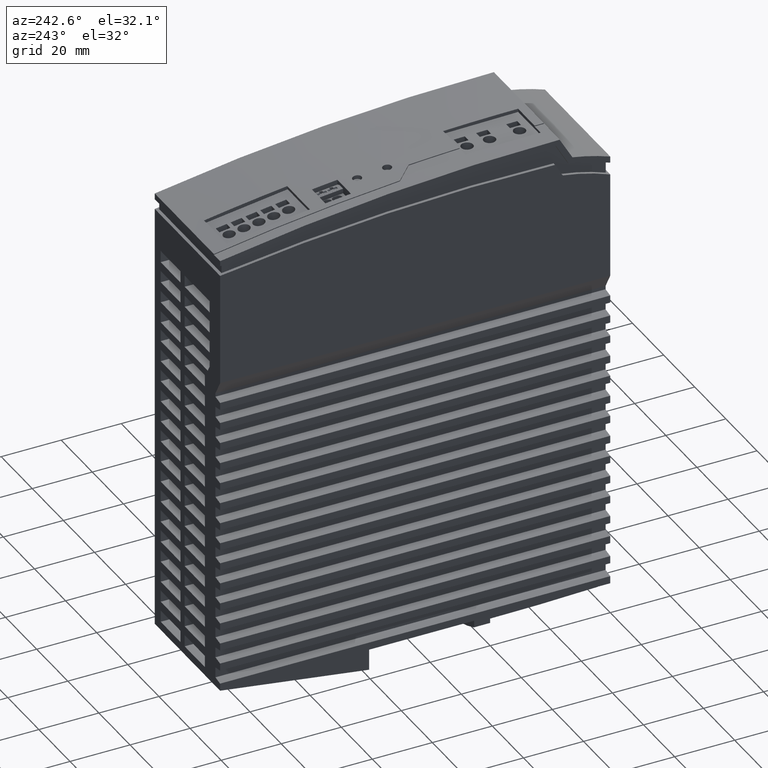
[diagram: clean part render]
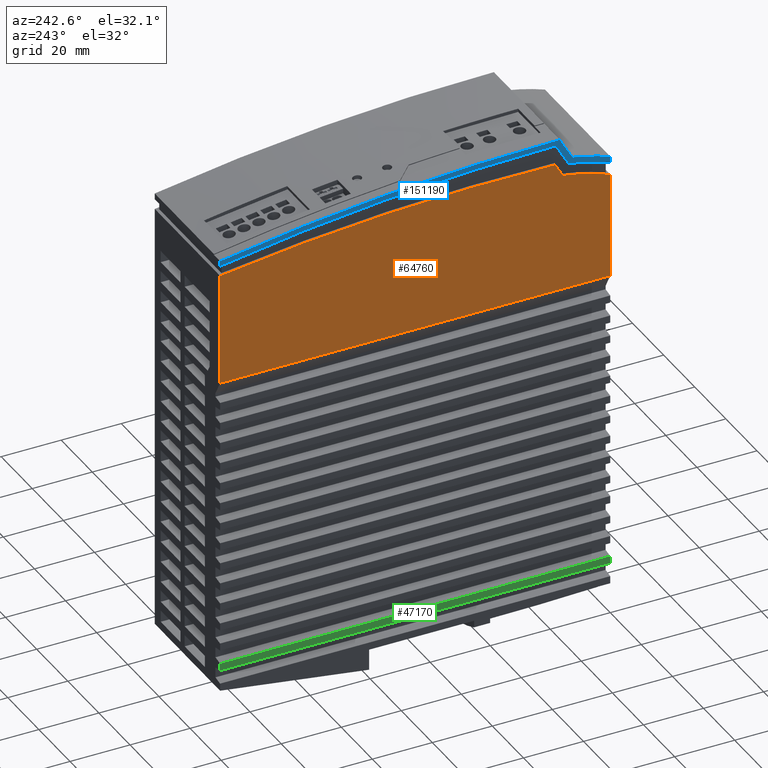
[diagram: same view with three faces highlighted in distinct colors, each labeled with its STEP entity id]
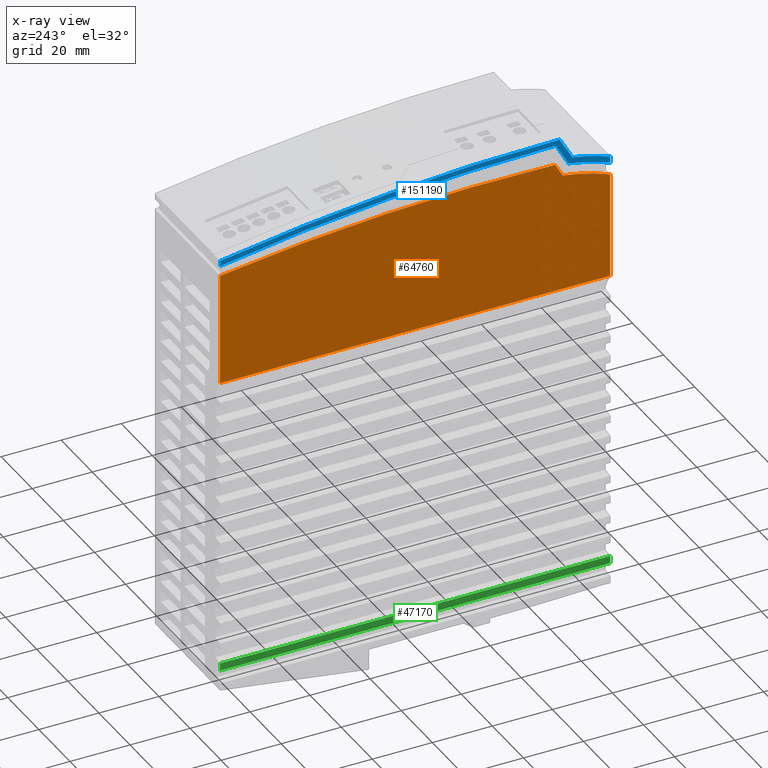
[diagram: x-ray of the same camera — body ghosted, the three highlighted faces saturated]
A machine part, auxiliary view with three faces highlighted in distinct colors.
The next image is the same camera in x-ray (body ghosted, the three faces saturated) — at least one of them is partly hidden behind the body in this view.
Their STEP definitions:

[orange] entity #64760 — the highlighted planar face has unit normal (-1, 0, 0).
#37910=CARTESIAN_POINT('',(144.853503496781,130.,-8.5));
#37920=VERTEX_POINT('',#37910);
#37950=CARTESIAN_POINT('',(128.90472881771,130.,-8.5));
#37960=DIRECTION('',(1.,0.,0.));
#37970=VECTOR('',#37960,1.);
#37980=LINE('',#37950,#37970);
#37990=CARTESIAN_POINT('',(107.392304845406,130.,-8.5));
#38000=VERTEX_POINT('',#37990);
#38010=EDGE_CURVE('',#38000,#37920,#37980,.T.);
#55840=CARTESIAN_POINT('',(107.392304845406,64.9999998943551,-8.5));
#55850=DIRECTION('',(0.,-1.,0.));
#55860=VECTOR('',#55850,1.);
#55870=LINE('',#55840,#55860);
#55880=CARTESIAN_POINT('',(107.392304845406,0.,-8.5));
#55890=VERTEX_POINT('',#55880);
#55900=EDGE_CURVE('',#38000,#55890,#55870,.T.);
#64350=CARTESIAN_POINT('',(106.9903810568,0.,-8.5));
#64360=DIRECTION('',(0.,0.,1.));
#64370=DIRECTION('',(1.,0.,0.));
#64380=AXIS2_PLACEMENT_3D('',#64350,#64360,#64370);
#64390=PLANE('',#64380);
#64400=ORIENTED_EDGE('',*,*,#55900,.T.);
#64410=ORIENTED_EDGE('',*,*,#38010,.F.);
#64420=CARTESIAN_POINT('',(-504.,36.,-8.5));
#64430=DIRECTION('',(0.,0.,1.));
#64440=DIRECTION('',(1.,0.,0.));
#64450=AXIS2_PLACEMENT_3D('',#64420,#64430,#64440);
#64460=CIRCLE('',#64450,655.6270807403);
#64470=CARTESIAN_POINT('',(151.390000000037,18.3700000000258,-8.5));
#64480=VERTEX_POINT('',#64470);
#64490=EDGE_CURVE('',#64480,#37920,#64460,.T.);
#64500=ORIENTED_EDGE('',*,*,#64490,.T.);
#64510=CARTESIAN_POINT('',(128.90472881771,5.42665736895805,-8.5));
#64520=DIRECTION('',(-0.86666783043328,-0.498885629871288,0.));
#64530=VECTOR('',#64520,1.);
#64540=LINE('',#64510,#64530);
#64550=CARTESIAN_POINT('',(146.969994064791,15.8256832876613,-8.5));
#64560=VERTEX_POINT('',#64550);
#64570=EDGE_CURVE('',#64480,#64560,#64540,.T.);
#64580=ORIENTED_EDGE('',*,*,#64570,.F.);
#64590=CARTESIAN_POINT('',(78.52,25.64,-8.5));
#64600=DIRECTION('',(0.,0.,1.));
#64610=DIRECTION('',(1.,0.,0.));
#64620=AXIS2_PLACEMENT_3D('',#64590,#64600,#64610);
#64630=CIRCLE('',#64620,69.15);
#64640=CARTESIAN_POINT('',(142.740813604314,0.,-8.5));
#64650=VERTEX_POINT('',#64640);
#64660=EDGE_CURVE('',#64650,#64560,#64630,.T.);
#64670=ORIENTED_EDGE('',*,*,#64660,.T.);
#64680=CARTESIAN_POINT('',(128.90472881771,0.,-8.5));
#64690=DIRECTION('',(1.,0.,0.));
#64700=VECTOR('',#64690,1.);
#64710=LINE('',#64680,#64700);
#64720=EDGE_CURVE('',#55890,#64650,#64710,.T.);
#64730=ORIENTED_EDGE('',*,*,#64720,.T.);
#64740=EDGE_LOOP('',(#64730,#64670,#64580,#64500,#64410,#64400));
#64750=FACE_OUTER_BOUND('',#64740,.T.);
#64760=ADVANCED_FACE('',(#64750),#64390,.T.);

[blue] entity #151190 — the highlighted planar face has unit normal (-1, 0, 0).
#64350=CARTESIAN_POINT('',(106.9903810568,0.,-8.5));
#64360=DIRECTION('',(0.,0.,1.));
#64370=DIRECTION('',(1.,0.,0.));
#64380=AXIS2_PLACEMENT_3D('',#64350,#64360,#64370);
#64390=PLANE('',#64380);
#150490=CARTESIAN_POINT('',(128.90472881771,1.3565377439053,-8.5));
#150500=DIRECTION('',(0.866025403667339,0.500000000202823,0.));
#150510=VECTOR('',#150500,1.);
#150520=LINE('',#150490,#150510);
#150530=CARTESIAN_POINT('',(150.569044107833,13.8644360152317,-8.5));
#150540=VERTEX_POINT('',#150530);
#150550=CARTESIAN_POINT('',(157.998987853453,18.1541160391493,-8.5));
#150560=VERTEX_POINT('',#150550);
#150570=EDGE_CURVE('',#150540,#150560,#150520,.T.);
#150580=ORIENTED_EDGE('',*,*,#150570,.F.);
#150590=CARTESIAN_POINT('',(-500.,17.,-8.5));
#150600=DIRECTION('',(0.,0.,-1.));
#150610=DIRECTION('',(-1.,0.,0.));
#150620=AXIS2_PLACEMENT_3D('',#150590,#150600,#150610);
#150630=CIRCLE('',#150620,658.);
#150640=CARTESIAN_POINT('',(148.224498148597,130.,-8.5));
#150650=VERTEX_POINT('',#150640);
#150660=EDGE_CURVE('',#150650,#150560,#150630,.T.);
#150670=ORIENTED_EDGE('',*,*,#150660,.T.);
#150680=CARTESIAN_POINT('',(128.90472881771,130.,-8.5));
#150690=DIRECTION('',(1.,0.,0.));
#150700=VECTOR('',#150690,1.);
#150710=LINE('',#150680,#150700);
#150720=CARTESIAN_POINT('',(149.998374592783,130.,-8.5));
#150730=VERTEX_POINT('',#150720);
#150740=EDGE_CURVE('',#150650,#150730,#150710,.T.);
#150750=ORIENTED_EDGE('',*,*,#150740,.F.);
#150760=CARTESIAN_POINT('',(-500.154692,17.,-8.5));
#150770=DIRECTION('',(0.,0.,-1.));
#150780=DIRECTION('',(-1.,0.,0.));
#150790=AXIS2_PLACEMENT_3D('',#150760,#150770,#150780);
#150800=CIRCLE('',#150790,659.9);
#150810=CARTESIAN_POINT('',(159.745291614598,16.8529440451181,-8.5));
#150820=VERTEX_POINT('',#150810);
#150830=EDGE_CURVE('',#150730,#150820,#150800,.T.);
#150840=ORIENTED_EDGE('',*,*,#150830,.F.);
#150850=CARTESIAN_POINT('',(128.90472881771,-0.952863187625638,-8.5));
#150860=DIRECTION('',(-0.866025403784429,-0.500000000000017,0.));
#150870=VECTOR('',#150860,1.);
#150880=LINE('',#150850,#150870);
#150890=CARTESIAN_POINT('',(152.380000000004,12.6005909487722,-8.5));
#150900=VERTEX_POINT('',#150890);
#150910=EDGE_CURVE('',#150820,#150900,#150880,.T.);
#150920=ORIENTED_EDGE('',*,*,#150910,.F.);
#150930=CARTESIAN_POINT('',(78.52535719996,25.65783939084,-8.5));
#150940=DIRECTION('',(0.,0.,-1.));
#150950=DIRECTION('',(-1.,0.,0.));
#150960=AXIS2_PLACEMENT_3D('',#150930,#150940,#150950);
#150970=CIRCLE('',#150960,75.);
#150980=CARTESIAN_POINT('',(149.000000000004,0.,-8.5));
#150990=VERTEX_POINT('',#150980);
#151000=EDGE_CURVE('',#150900,#150990,#150970,.T.);
#151010=ORIENTED_EDGE('',*,*,#151000,.F.);
#151020=CARTESIAN_POINT('',(128.90472881771,0.,-8.5));
#151030=DIRECTION('',(1.,0.,0.));
#151040=VECTOR('',#151030,1.);
#151050=LINE('',#151020,#151040);
#151060=CARTESIAN_POINT('',(146.867696038368,7.105427357601E-14,-8.5));
#151070=VERTEX_POINT('',#151060);
#151080=EDGE_CURVE('',#151070,#150990,#151050,.T.);
#151090=ORIENTED_EDGE('',*,*,#151080,.T.);
#151100=CARTESIAN_POINT('',(78.53,25.67020257356,-8.5));
#151110=DIRECTION('',(0.,0.,-1.));
#151120=DIRECTION('',(-1.,0.,0.));
#151130=AXIS2_PLACEMENT_3D('',#151100,#151110,#151120);
#151140=CIRCLE('',#151130,73.);
#151150=EDGE_CURVE('',#150540,#151070,#151140,.T.);
#151160=ORIENTED_EDGE('',*,*,#151150,.T.);
#151170=EDGE_LOOP('',(#151160,#151090,#151010,#150920,#150840,#150750,
#150670,#150580));
#151180=FACE_OUTER_BOUND('',#151170,.T.);
#151190=ADVANCED_FACE('',(#151180),#64390,.T.);

[green] entity #47170 — the highlighted planar face has unit normal (-1, 0, 0).
#18040=CARTESIAN_POINT('',(128.90472881771,130.,-8.5));
#18050=DIRECTION('',(-1.,0.,0.));
#18060=VECTOR('',#18050,1.);
#18070=LINE('',#18040,#18060);
#18220=CARTESIAN_POINT('',(128.90472881771,0.,-8.5));
#18230=DIRECTION('',(-1.,0.,0.));
#18240=VECTOR('',#18230,1.);
#18250=LINE('',#18220,#18240);
#21840=CARTESIAN_POINT('',(7.0155095289376,0.,-8.5));
#21850=VERTEX_POINT('',#21840);
#22000=CARTESIAN_POINT('',(7.0155095289376,130.,-8.5));
#22010=VERTEX_POINT('',#22000);
#22040=CARTESIAN_POINT('',(7.0155095289376,64.9999998943551,-8.5));
#22050=DIRECTION('',(0.,-1.,0.));
#22060=VECTOR('',#22050,1.);
#22070=LINE('',#22040,#22060);
#22080=EDGE_CURVE('',#22010,#21850,#22070,.T.);
#41870=CARTESIAN_POINT('',(9.47101905787427,130.,-8.5));
#41880=VERTEX_POINT('',#41870);
#41910=EDGE_CURVE('',#41880,#22010,#18070,.T.);
#46980=CARTESIAN_POINT('',(1.5,65.000000000069,-8.5));
#46990=DIRECTION('',(-0.,0.,1.));
#47000=DIRECTION('',(0.,-1.,0.));
#47010=AXIS2_PLACEMENT_3D('',#46980,#46990,#47000);
#47020=PLANE('',#47010);
#47030=ORIENTED_EDGE('',*,*,#41910,.T.);
#47040=CARTESIAN_POINT('',(9.47101905787427,64.9999998943551,-8.5));
#47050=DIRECTION('',(0.,1.,0.));
#47060=VECTOR('',#47050,1.);
#47070=LINE('',#47040,#47060);
#47080=CARTESIAN_POINT('',(9.47101905787427,0.,-8.5));
#47090=VERTEX_POINT('',#47080);
#47100=EDGE_CURVE('',#47090,#41880,#47070,.T.);
#47110=ORIENTED_EDGE('',*,*,#47100,.T.);
#47120=EDGE_CURVE('',#47090,#21850,#18250,.T.);
#47130=ORIENTED_EDGE('',*,*,#47120,.F.);
#47140=ORIENTED_EDGE('',*,*,#22080,.T.);
#47150=EDGE_LOOP('',(#47140,#47130,#47110,#47030));
#47160=FACE_OUTER_BOUND('',#47150,.T.);
#47170=ADVANCED_FACE('',(#47160),#47020,.T.);